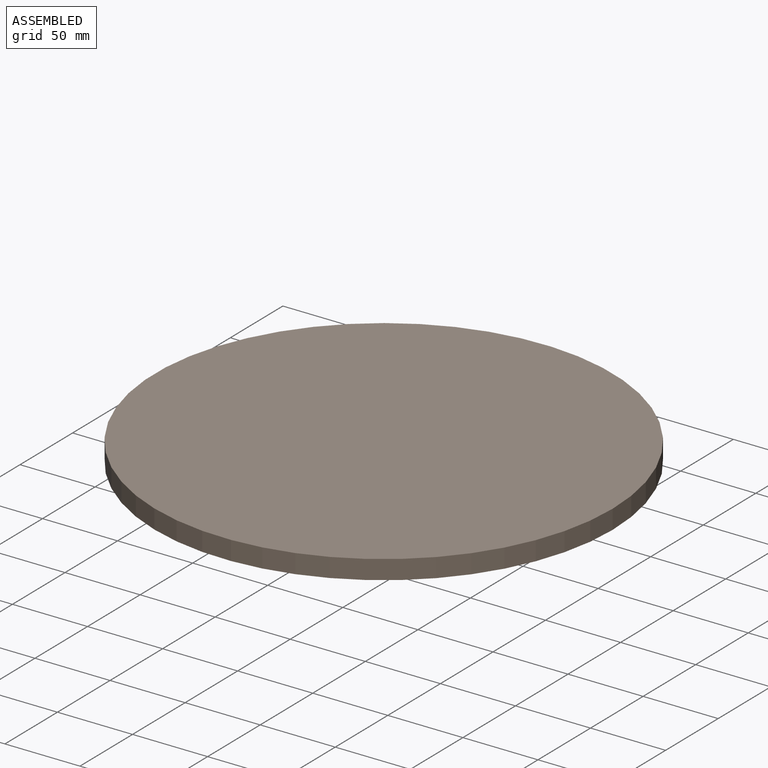
[diagram: assembled view]
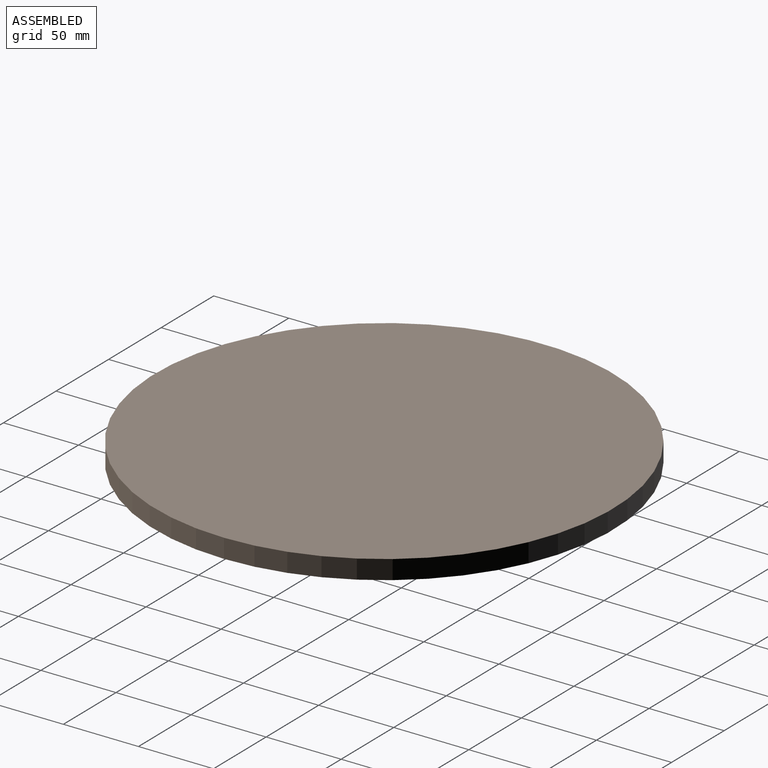
[diagram: assembled view, second angle]
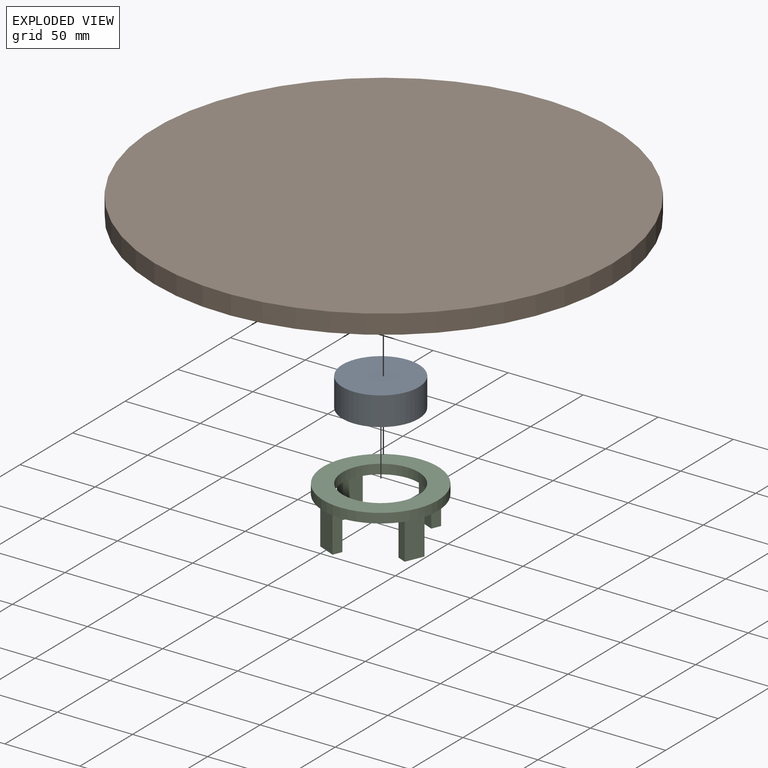
[diagram: exploded view]
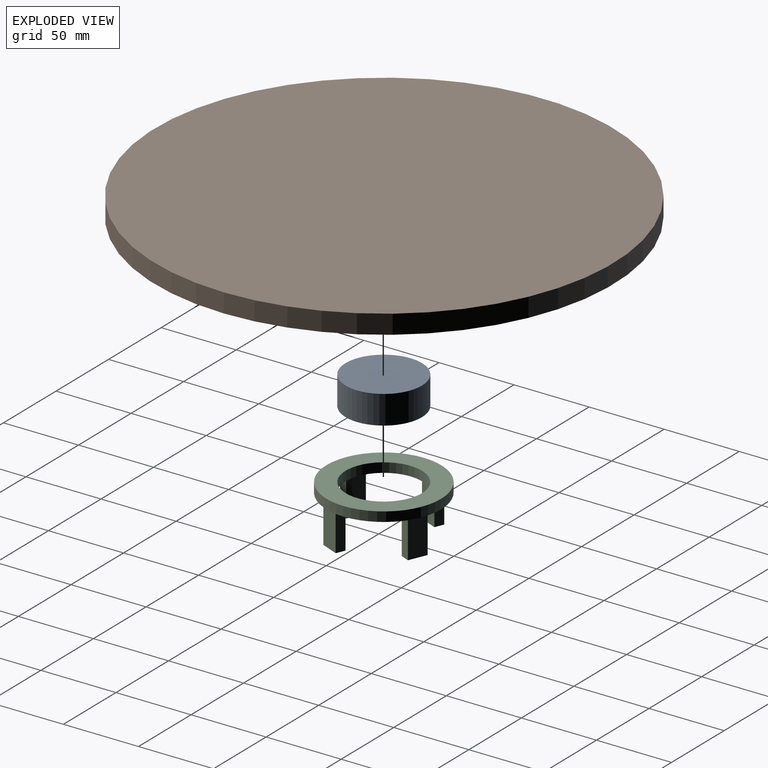
[diagram: exploded view, second angle]
ASSEMBLY  parts=3 mates=2
PART A: 3 faces, bbox 50.8x50.8x19.1 mm
  f0: cylinder r=25.4mm len=50.8mm, axis (0,0,-1), area 3040.2mm2, adj f1,f2
  f1: plane 50.8x50.8mm, normal (0,0,1), area 2026.8mm2, adj f0
  f2: plane 50.8x50.8mm, normal (0,0,-1), area 2026.8mm2, adj f0
PART B: 5 faces, bbox 304.8x304.8x12.7 mm
  f0: cylinder r=152.4mm len=304.8mm, axis (0,0,-1), area 12161mm2, adj f1,f2
  f1: plane 304.8x304.8mm, normal (0,0,1), area 72965.9mm2, adj f0
  f2: plane 304.8x304.8mm, normal (0,0,-1), area 70939mm2, adj f0,f3
  f3: cylinder r=25.4mm len=50.8mm, axis (0,0,-1), area 1013.4mm2, adj f2,f4
  f4: plane 50.8x50.8mm, normal (0,0,-1), area 2026.8mm2, adj f3
PART C: 24 faces, bbox 76.2x76.2x31.8 mm
  f0: plane 76.2x76.2mm, normal (0,0,1), area 2211mm2, adj f1,f2,f4,f5,f6,f7,f9,f10
  f1: cylinder r=25.4mm len=50.8mm, axis (0,0,-1), area 1013.4mm2, adj f0,f3
  f2: cylinder r=38.1mm len=76.2mm, axis (0,0,-1), area 1520.1mm2, adj f0,f3
  f3: plane 76.2x76.2mm, normal (0,0,-1), area 2533.5mm2, adj f1,f2
  f4: plane 25.4x6.35mm, normal (0,1,0), area 161.3mm2, adj f0,f5,f7,f8
  f5: plane 25.4x12.7mm, normal (-1,0,0), area 322.6mm2, adj f0,f4,f6,f8
  f6: plane 25.4x6.35mm, normal (0,-1,0), area 161.3mm2, adj f0,f5,f7,f8
  f7: plane 25.4x12.7mm, normal (1,0,0), area 322.6mm2, adj f0,f4,f6,f8
  f8: plane 12.7x6.35mm, normal (0,0,1), area 80.6mm2, adj f4,f5,f6,f7
  f9: plane 25.4x12.7mm, normal (1,0,0), area 322.6mm2, adj f0,f10,f12,f13
  f10: plane 25.4x6.35mm, normal (0,1,0), area 161.3mm2, adj f0,f9,f11,f13
  f11: plane 25.4x12.7mm, normal (-1,0,0), area 322.6mm2, adj f0,f10,f12,f13
  f12: plane 25.4x6.35mm, normal (0,-1,0), area 161.3mm2, adj f0,f9,f11,f13
  f13: plane 12.7x6.35mm, normal (0,0,1), area 80.6mm2, adj f9,f10,f11,f12
  f14: plane 25.4x12.7mm, normal (0,1,0), area 322.6mm2, adj f0,f15,f17,f18
  f15: plane 25.4x6.35mm, normal (-1,0,0), area 161.3mm2, adj f0,f14,f16,f18
  f16: plane 25.4x12.7mm, normal (0,-1,0), area 322.6mm2, adj f0,f15,f17,f18
  f17: plane 25.4x6.35mm, normal (1,0,0), area 161.3mm2, adj f0,f14,f16,f18
  f18: plane 12.7x6.35mm, normal (0,0,1), area 80.6mm2, adj f14,f15,f16,f17
  f19: plane 25.4x12.7mm, normal (0,-1,0), area 322.6mm2, adj f0,f20,f22,f23
  f20: plane 25.4x6.35mm, normal (1,0,0), area 161.3mm2, adj f0,f19,f21,f23
  f21: plane 25.4x12.7mm, normal (0,1,0), area 322.6mm2, adj f0,f20,f22,f23
  f22: plane 25.4x6.35mm, normal (-1,0,0), area 161.3mm2, adj f0,f19,f21,f23
  f23: plane 12.7x6.35mm, normal (0,0,1), area 80.6mm2, adj f19,f20,f21,f22
PLACE A rot(axis=(0,0,-1),23deg) t=(48.9,-62.4,39.32)mm
PLACE B t=(48.9,-62.4,58.37)mm
PLACE C rot(axis=(0.2,0.98,0),180deg) t=(48.9,-62.4,45.67)mm
MATE revolute A.f0 <-> B.f3  axis (0,0,1) through (48.9,-62.4,58.37)mm
MATE fastened C.f2 <-> A.f0  axis (0,0,-1) through (48.9,-62.4,39.32)mm
